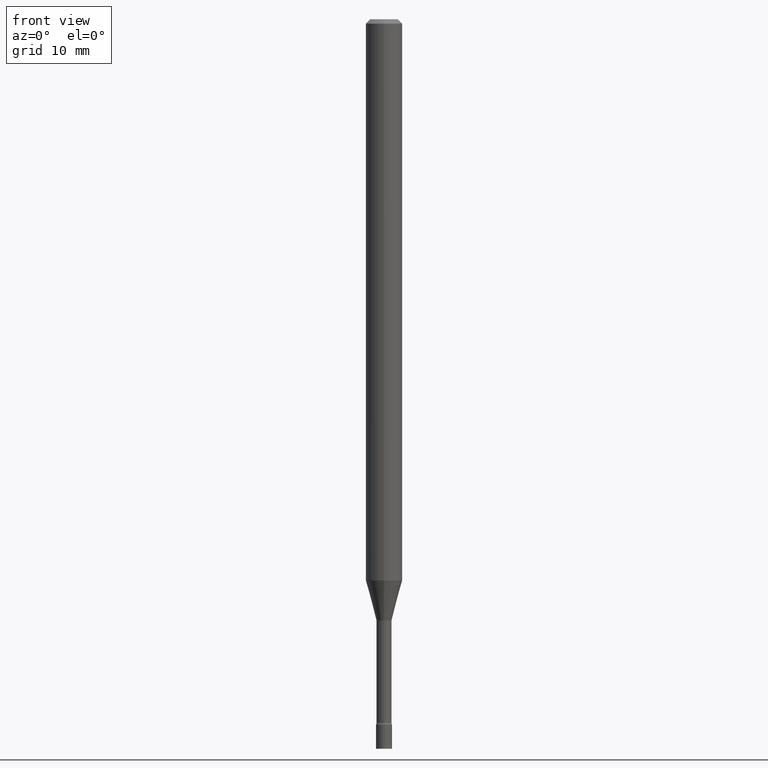
[diagram: clean part render]
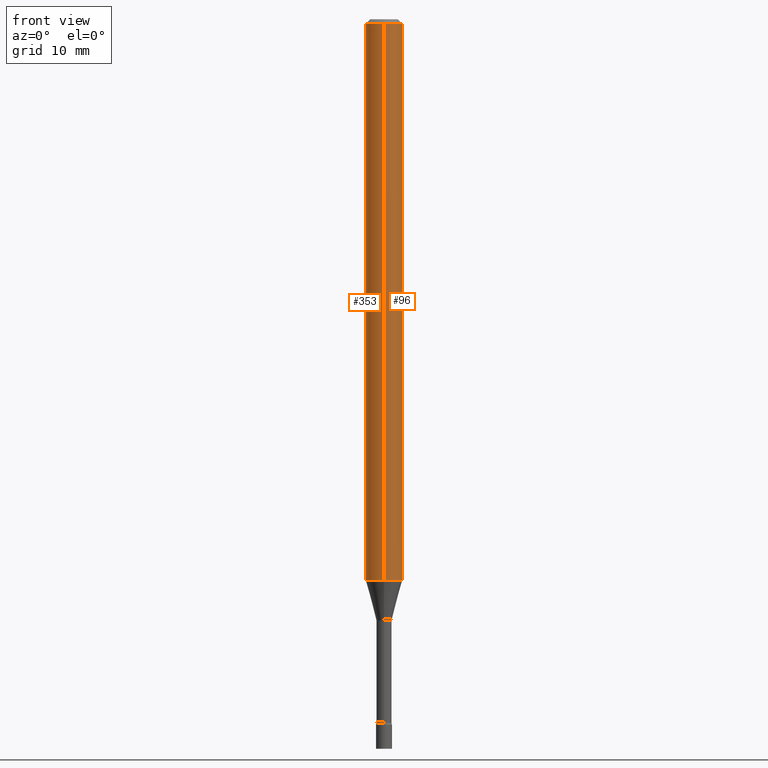
[diagram: same view with one multi-face feature highlighted, each face labeled with its STEP entity id]
A machine part, front view. The highlighted faces form ONE feature: a constant-radius fillet chain: 2 tangent blend faces with common blend radius 1.5875 mm. The faces share edges in the B-rep.
Their STEP definitions:
[1] entity #353 (Cylinder):
#13 = LINE ( 'NONE', #208, #419 ) ;
#18 = CIRCLE ( 'NONE', #124, 0.06250000000000000000 ) ;
#21 = CARTESIAN_POINT ( 'NONE',  ( 0.000000000000000000, 0.000000000000000000, 0.000000000000000000 ) ) ;
#41 = DIRECTION ( 'NONE',  ( -2.445418385667774846E-29, 3.491553543893765226E-15, 1.000000000000000000 ) ) ;
#46 = AXIS2_PLACEMENT_3D ( 'NONE', #21, #189, #272 ) ;
#52 = DIRECTION ( 'NONE',  ( -2.445418385667774846E-29, 3.491553543893765226E-15, 1.000000000000000000 ) ) ;
#56 = ORIENTED_EDGE ( 'NONE', *, *, #515, .T. ) ;
#78 = ORIENTED_EDGE ( 'NONE', *, *, #500, .F. ) ;
#86 = CARTESIAN_POINT ( 'NONE',  ( 4.440892098500625669E-16, 0.06250000000000000000, -2.182220964933603019E-16 ) ) ;
#124 = AXIS2_PLACEMENT_3D ( 'NONE', #354, #41, #356 ) ;
#138 = CARTESIAN_POINT ( 'NONE',  ( -4.364351673553447815E-16, -0.06250000000000673073, -1.923220337902600718 ) ) ;
#155 = EDGE_CURVE ( 'NONE', #157, #273, #13, .T. ) ;
#157 = VERTEX_POINT ( 'NONE', #138 ) ;
#185 = AXIS2_PLACEMENT_3D ( 'NONE', #317, #240, #234 ) ;
#189 = DIRECTION ( 'NONE',  ( -2.445418385667774846E-29, 3.491553543893765226E-15, 1.000000000000000000 ) ) ;
#191 = CARTESIAN_POINT ( 'NONE',  ( 4.440892098501099478E-16, 0.06249999999999995143, -0.01500000000000024751 ) ) ;
#204 = DIRECTION ( 'NONE',  ( -2.445418385667774846E-29, 3.491553543893765226E-15, 1.000000000000000000 ) ) ;
#208 = CARTESIAN_POINT ( 'NONE',  ( -4.364351673553916201E-16, -0.06250000000000000000, 2.182220964933603019E-16 ) ) ;
#216 = VERTEX_POINT ( 'NONE', #452 ) ;
#225 = CYLINDRICAL_SURFACE ( 'NONE', #46, 0.06250000000000000000 ) ;
#228 = CARTESIAN_POINT ( 'NONE',  ( -4.364351673553912750E-16, -0.06250000000000005551, -0.01499999999999981209 ) ) ;
#234 = DIRECTION ( 'NONE',  ( -6.982962677686265922E-15, -1.000000000000000000, 3.483106191921935554E-15 ) ) ;
#240 = DIRECTION ( 'NONE',  ( -2.445418385667774846E-29, 3.491553543893765226E-15, 1.000000000000000000 ) ) ;
#250 = CIRCLE ( 'NONE', #185, 0.06250000000000000000 ) ;
#261 = ORIENTED_EDGE ( 'NONE', *, *, #155, .T. ) ;
#272 = DIRECTION ( 'NONE',  ( -6.982962677686265922E-15, -1.000000000000000000, 3.491553543893764831E-15 ) ) ;
#273 = VERTEX_POINT ( 'NONE', #228 ) ;
#317 = CARTESIAN_POINT ( 'NONE',  ( 3.668127578501669485E-31, -5.237330315840658710E-17, -0.01500000000000003067 ) ) ;
#350 = VECTOR ( 'NONE', #204, 39.37007874015748143 ) ;
#353 = ADVANCED_FACE ( 'NONE', ( #503 ), #225, .T. ) ;
#354 = CARTESIAN_POINT ( 'NONE',  ( 4.703078373997210395E-29, -6.715026786492391086E-15, -1.923220337902600940 ) ) ;
#356 = DIRECTION ( 'NONE',  ( -6.982962677686265922E-15, -1.000000000000000000, 4.370956789862821150E-15 ) ) ;
#388 = VERTEX_POINT ( 'NONE', #191 ) ;
#419 = VECTOR ( 'NONE', #52, 39.37007874015748143 ) ;
#422 = ORIENTED_EDGE ( 'NONE', *, *, #482, .F. ) ;
#424 = EDGE_LOOP ( 'NONE', ( #422, #56, #261, #78 ) ) ;
#452 = CARTESIAN_POINT ( 'NONE',  ( 4.440892098501093562E-16, 0.06249999999999326233, -1.923220337902601162 ) ) ;
#482 = EDGE_CURVE ( 'NONE', #216, #388, #520, .T. ) ;
#500 = EDGE_CURVE ( 'NONE', #388, #273, #250, .T. ) ;
#503 = FACE_OUTER_BOUND ( 'NONE', #424, .T. ) ;
#515 = EDGE_CURVE ( 'NONE', #216, #157, #18, .T. ) ;
#520 = LINE ( 'NONE', #86, #350 ) ;
[2] entity #96 (Cylinder):
#2 = CIRCLE ( 'NONE', #287, 0.06250000000000000000 ) ;
#13 = LINE ( 'NONE', #208, #419 ) ;
#52 = DIRECTION ( 'NONE',  ( -2.445418385667774846E-29, 3.491553543893765226E-15, 1.000000000000000000 ) ) ;
#86 = CARTESIAN_POINT ( 'NONE',  ( 4.440892098500625669E-16, 0.06250000000000000000, -2.182220964933603019E-16 ) ) ;
#96 = ADVANCED_FACE ( 'NONE', ( #495 ), #253, .T. ) ;
#101 = DIRECTION ( 'NONE',  ( -2.445418385667774846E-29, 3.491553543893765226E-15, 1.000000000000000000 ) ) ;
#112 = ORIENTED_EDGE ( 'NONE', *, *, #155, .F. ) ;
#133 = CIRCLE ( 'NONE', #427, 0.06250000000000000000 ) ;
#138 = CARTESIAN_POINT ( 'NONE',  ( -4.364351673553447815E-16, -0.06250000000000673073, -1.923220337902600718 ) ) ;
#155 = EDGE_CURVE ( 'NONE', #157, #273, #13, .T. ) ;
#157 = VERTEX_POINT ( 'NONE', #138 ) ;
#160 = EDGE_CURVE ( 'NONE', #273, #388, #133, .T. ) ;
#168 = CARTESIAN_POINT ( 'NONE',  ( 3.668127578501669485E-31, -5.237330315840658710E-17, -0.01500000000000003067 ) ) ;
#170 = CARTESIAN_POINT ( 'NONE',  ( 0.000000000000000000, 0.000000000000000000, 0.000000000000000000 ) ) ;
#178 = CARTESIAN_POINT ( 'NONE',  ( 4.703078373997210395E-29, -6.715026786492391086E-15, -1.923220337902600940 ) ) ;
#188 = EDGE_CURVE ( 'NONE', #157, #216, #2, .T. ) ;
#191 = CARTESIAN_POINT ( 'NONE',  ( 4.440892098501099478E-16, 0.06249999999999995143, -0.01500000000000024751 ) ) ;
#204 = DIRECTION ( 'NONE',  ( -2.445418385667774846E-29, 3.491553543893765226E-15, 1.000000000000000000 ) ) ;
#208 = CARTESIAN_POINT ( 'NONE',  ( -4.364351673553916201E-16, -0.06250000000000000000, 2.182220964933603019E-16 ) ) ;
#211 = DIRECTION ( 'NONE',  ( -2.445418385667774846E-29, 3.491553543893765226E-15, 1.000000000000000000 ) ) ;
#216 = VERTEX_POINT ( 'NONE', #452 ) ;
#228 = CARTESIAN_POINT ( 'NONE',  ( -4.364351673553912750E-16, -0.06250000000000005551, -0.01499999999999981209 ) ) ;
#253 = CYLINDRICAL_SURFACE ( 'NONE', #262, 0.06250000000000000000 ) ;
#262 = AXIS2_PLACEMENT_3D ( 'NONE', #170, #211, #498 ) ;
#271 = EDGE_LOOP ( 'NONE', ( #355, #433, #382, #112 ) ) ;
#273 = VERTEX_POINT ( 'NONE', #228 ) ;
#287 = AXIS2_PLACEMENT_3D ( 'NONE', #178, #101, #368 ) ;
#323 = DIRECTION ( 'NONE',  ( -2.445418385667774846E-29, 3.491553543893765226E-15, 1.000000000000000000 ) ) ;
#350 = VECTOR ( 'NONE', #204, 39.37007874015748143 ) ;
#355 = ORIENTED_EDGE ( 'NONE', *, *, #188, .T. ) ;
#368 = DIRECTION ( 'NONE',  ( -6.982962677686265922E-15, -1.000000000000000000, 4.370956789862821150E-15 ) ) ;
#382 = ORIENTED_EDGE ( 'NONE', *, *, #160, .F. ) ;
#388 = VERTEX_POINT ( 'NONE', #191 ) ;
#419 = VECTOR ( 'NONE', #52, 39.37007874015748143 ) ;
#427 = AXIS2_PLACEMENT_3D ( 'NONE', #168, #323, #490 ) ;
#433 = ORIENTED_EDGE ( 'NONE', *, *, #482, .T. ) ;
#452 = CARTESIAN_POINT ( 'NONE',  ( 4.440892098501093562E-16, 0.06249999999999326233, -1.923220337902601162 ) ) ;
#482 = EDGE_CURVE ( 'NONE', #216, #388, #520, .T. ) ;
#490 = DIRECTION ( 'NONE',  ( -6.982962677686265922E-15, -1.000000000000000000, 3.483106191921935554E-15 ) ) ;
#495 = FACE_OUTER_BOUND ( 'NONE', #271, .T. ) ;
#498 = DIRECTION ( 'NONE',  ( -6.982962677686265922E-15, -1.000000000000000000, 3.491553543893764831E-15 ) ) ;
#520 = LINE ( 'NONE', #86, #350 ) ;